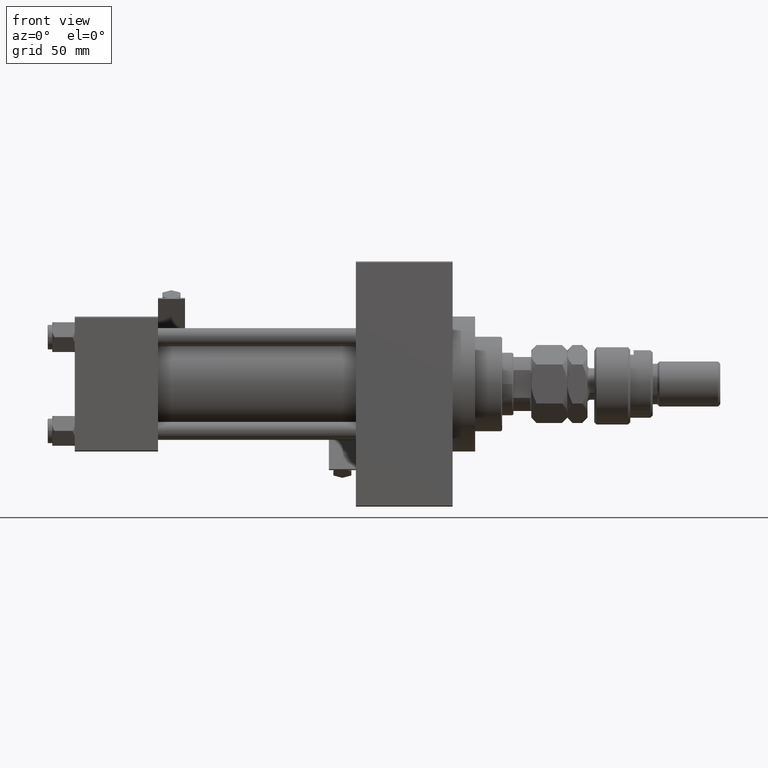
[diagram: clean part render]
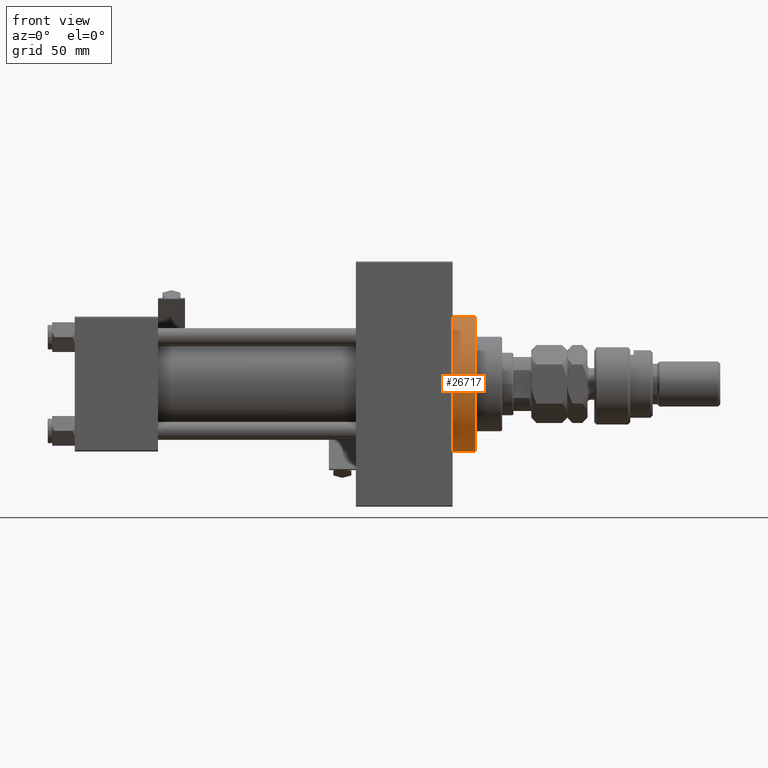
[diagram: same view with one face highlighted and labeled with its STEP entity id]
A machine part, front view. The second image highlights one B-rep face of the part: STEP entity #26717.
In plain terms, the highlighted cylindrical surface (partial cylindrical patch) has radius 30 mm, axis along (-1, -0, -0).
Its self-contained STEP definition (entity closure, byte-faithful):
#20 = CARTESIAN_POINT ( 'NONE',  ( 178.0000000000000000, 0.000000000000000000, 30.00000000000000000 ) ) ;
#189 = CYLINDRICAL_SURFACE ( 'NONE', #34399, 30.00000000000000000 ) ;
#731 = VERTEX_POINT ( 'NONE', #40042 ) ;
#3168 = FACE_OUTER_BOUND ( 'NONE', #21447, .T. ) ;
#3632 = DIRECTION ( 'NONE',  ( -1.000000000000000000, -0.000000000000000000, -0.000000000000000000 ) ) ;
#6189 = DIRECTION ( 'NONE',  ( 0.000000000000000000, 0.000000000000000000, -1.000000000000000000 ) ) ;
#7673 = AXIS2_PLACEMENT_3D ( 'NONE', #26766, #43244, #6189 ) ;
#9522 = EDGE_CURVE ( 'NONE', #29982, #23862, #16373, .T. ) ;
#10199 = CARTESIAN_POINT ( 'NONE',  ( 167.9999999999999716, 0.000000000000000000, 0.000000000000000000 ) ) ;
#11308 = ORIENTED_EDGE ( 'NONE', *, *, #49515, .T. ) ;
#11656 = CARTESIAN_POINT ( 'NONE',  ( 167.9999999999999716, 0.000000000000000000, 30.00000000000000000 ) ) ;
#15641 = DIRECTION ( 'NONE',  ( 0.000000000000000000, 0.000000000000000000, 1.000000000000000000 ) ) ;
#15867 = CIRCLE ( 'NONE', #48673, 30.00000000000000000 ) ;
#16373 = LINE ( 'NONE', #21208, #20660 ) ;
#20497 = AXIS2_PLACEMENT_3D ( 'NONE', #32082, #28032, #49103 ) ;
#20660 = VECTOR ( 'NONE', #3632, 1000.000000000000000 ) ;
#20832 = LINE ( 'NONE', #43604, #29586 ) ;
#21047 = VERTEX_POINT ( 'NONE', #45738 ) ;
#21208 = CARTESIAN_POINT ( 'NONE',  ( 178.0000000000000000, 0.000000000000000000, 30.00000000000000000 ) ) ;
#21447 = EDGE_LOOP ( 'NONE', ( #32939, #23263, #32149, #37089, #11308 ) ) ;
#21735 = CARTESIAN_POINT ( 'NONE',  ( 178.0000000000000000, 3.673940397442059178E-15, -30.00000000000000000 ) ) ;
#23263 = ORIENTED_EDGE ( 'NONE', *, *, #32083, .F. ) ;
#23862 = VERTEX_POINT ( 'NONE', #11656 ) ;
#24879 = VERTEX_POINT ( 'NONE', #21735 ) ;
#24991 = CIRCLE ( 'NONE', #7673, 30.00000000000000000 ) ;
#25091 = DIRECTION ( 'NONE',  ( -1.000000000000000000, -0.000000000000000000, -0.000000000000000000 ) ) ;
#26445 = DIRECTION ( 'NONE',  ( 1.000000000000000000, 0.000000000000000000, 0.000000000000000000 ) ) ;
#26717 = ADVANCED_FACE ( 'NONE', ( #3168 ), #189, .T. ) ;
#26766 = CARTESIAN_POINT ( 'NONE',  ( 178.0000000000000000, 0.000000000000000000, 0.000000000000000000 ) ) ;
#28032 = DIRECTION ( 'NONE',  ( 1.000000000000000000, 0.000000000000000000, 0.000000000000000000 ) ) ;
#29586 = VECTOR ( 'NONE', #32720, 1000.000000000000000 ) ;
#29982 = VERTEX_POINT ( 'NONE', #20 ) ;
#30765 = DIRECTION ( 'NONE',  ( 0.000000000000000000, 0.000000000000000000, -1.000000000000000000 ) ) ;
#32082 = CARTESIAN_POINT ( 'NONE',  ( 167.9999999999999716, 0.000000000000000000, 0.000000000000000000 ) ) ;
#32083 = EDGE_CURVE ( 'NONE', #29982, #24879, #24991, .T. ) ;
#32149 = ORIENTED_EDGE ( 'NONE', *, *, #9522, .T. ) ;
#32720 = DIRECTION ( 'NONE',  ( -1.000000000000000000, -0.000000000000000000, -0.000000000000000000 ) ) ;
#32939 = ORIENTED_EDGE ( 'NONE', *, *, #38368, .F. ) ;
#34399 = AXIS2_PLACEMENT_3D ( 'NONE', #37258, #25091, #15641 ) ;
#37089 = ORIENTED_EDGE ( 'NONE', *, *, #41059, .T. ) ;
#37258 = CARTESIAN_POINT ( 'NONE',  ( 178.0000000000000000, 0.000000000000000000, 0.000000000000000000 ) ) ;
#38368 = EDGE_CURVE ( 'NONE', #24879, #21047, #20832, .T. ) ;
#40042 = CARTESIAN_POINT ( 'NONE',  ( 167.9999999999999716, -30.00000000000000000, 0.000000000000000000 ) ) ;
#41059 = EDGE_CURVE ( 'NONE', #23862, #731, #15867, .T. ) ;
#43244 = DIRECTION ( 'NONE',  ( 1.000000000000000000, 0.000000000000000000, 0.000000000000000000 ) ) ;
#43604 = CARTESIAN_POINT ( 'NONE',  ( 178.0000000000000000, 3.673940397442059178E-15, -30.00000000000000000 ) ) ;
#43787 = CIRCLE ( 'NONE', #20497, 30.00000000000000000 ) ;
#45738 = CARTESIAN_POINT ( 'NONE',  ( 167.9999999999999716, 3.673940397442059178E-15, -30.00000000000000000 ) ) ;
#48673 = AXIS2_PLACEMENT_3D ( 'NONE', #10199, #26445, #30765 ) ;
#49103 = DIRECTION ( 'NONE',  ( 0.000000000000000000, 0.000000000000000000, -1.000000000000000000 ) ) ;
#49515 = EDGE_CURVE ( 'NONE', #731, #21047, #43787, .T. ) ;